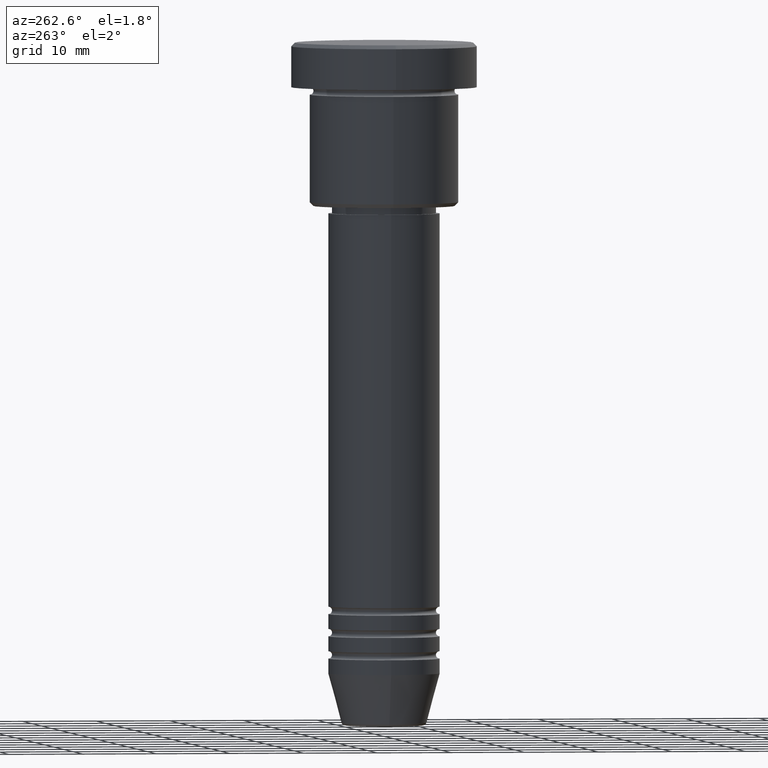
[diagram: clean part render]
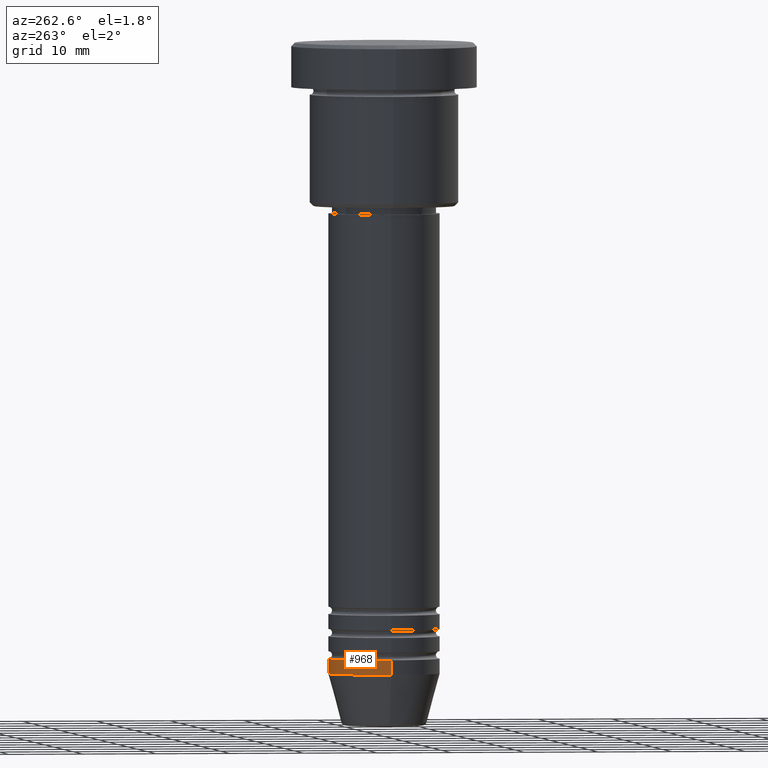
[diagram: same view with one face highlighted and labeled with its STEP entity id]
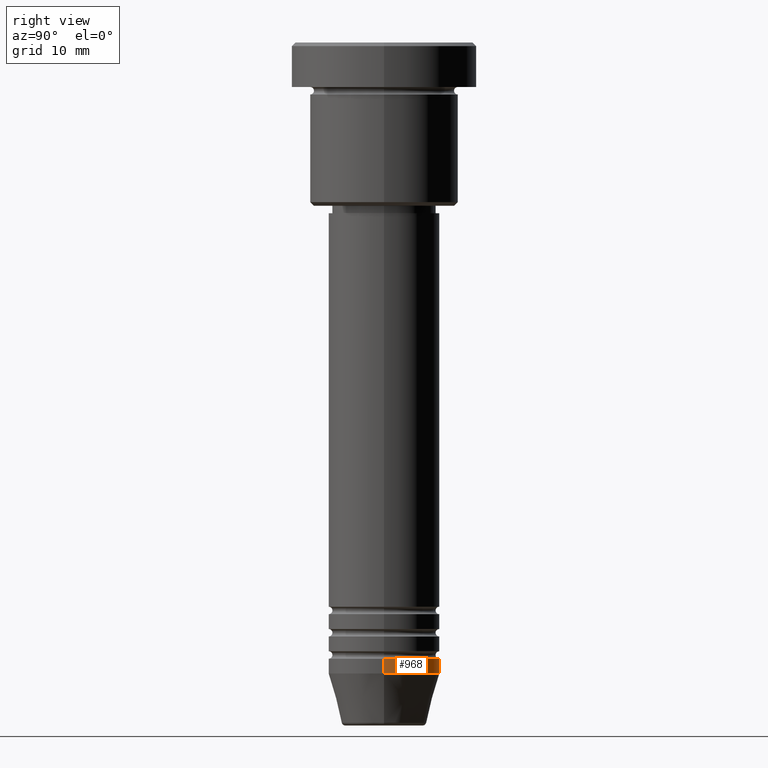
[diagram: same view with one face highlighted and labeled with its STEP entity id]
A machine part, auxiliary view. The second image highlights one B-rep face of the part: STEP entity #968.
A second angle (right view) of the same face is appended — the face is thin or edge-on in the first view.
In plain terms, the highlighted cylindrical surface (partial cylindrical patch) has radius 7.5 mm, axis along (-0, -0, 1).
Its self-contained STEP definition (entity closure, byte-faithful):
#13 = CYLINDRICAL_SURFACE ( 'NONE', #243, 7.500000000000000000 ) ;
#32 = LINE ( 'NONE', #1051, #77 ) ;
#38 = VERTEX_POINT ( 'NONE', #316 ) ;
#65 = EDGE_CURVE ( 'NONE', #380, #1043, #160, .T. ) ;
#77 = VECTOR ( 'NONE', #231, 1000.000000000000000 ) ;
#160 = CIRCLE ( 'NONE', #720, 7.500000000000000000 ) ;
#177 = ORIENTED_EDGE ( 'NONE', *, *, #892, .T. ) ;
#231 = DIRECTION ( 'NONE',  ( -0.000000000000000000, -0.000000000000000000, 1.000000000000000000 ) ) ;
#243 = AXIS2_PLACEMENT_3D ( 'NONE', #545, #1106, #1089 ) ;
#277 = CARTESIAN_POINT ( 'NONE',  ( -7.500000000000000000, 9.184850993605147944E-16, 0.000000000000000000 ) ) ;
#316 = CARTESIAN_POINT ( 'NONE',  ( -7.500000000000000000, 9.184850993605147944E-16, -84.99999999999998579 ) ) ;
#335 = VECTOR ( 'NONE', #1100, 1000.000000000000000 ) ;
#361 = EDGE_CURVE ( 'NONE', #38, #1043, #555, .T. ) ;
#380 = VERTEX_POINT ( 'NONE', #749 ) ;
#400 = CARTESIAN_POINT ( 'NONE',  ( 7.500000000000000000, 0.000000000000000000, -84.99999999999998579 ) ) ;
#448 = CARTESIAN_POINT ( 'NONE',  ( 0.000000000000000000, 0.000000000000000000, -84.99999999999998579 ) ) ;
#501 = ORIENTED_EDGE ( 'NONE', *, *, #361, .T. ) ;
#510 = EDGE_LOOP ( 'NONE', ( #177, #501, #1027, #865 ) ) ;
#516 = DIRECTION ( 'NONE',  ( 1.000000000000000000, 0.000000000000000000, 0.000000000000000000 ) ) ;
#520 = DIRECTION ( 'NONE',  ( 1.000000000000000000, 0.000000000000000000, 0.000000000000000000 ) ) ;
#526 = DIRECTION ( 'NONE',  ( -0.000000000000000000, -0.000000000000000000, 1.000000000000000000 ) ) ;
#535 = AXIS2_PLACEMENT_3D ( 'NONE', #448, #624, #520 ) ;
#545 = CARTESIAN_POINT ( 'NONE',  ( 0.000000000000000000, 0.000000000000000000, 0.000000000000000000 ) ) ;
#555 = LINE ( 'NONE', #277, #335 ) ;
#587 = CIRCLE ( 'NONE', #535, 7.500000000000000000 ) ;
#624 = DIRECTION ( 'NONE',  ( -0.000000000000000000, -0.000000000000000000, 1.000000000000000000 ) ) ;
#650 = CARTESIAN_POINT ( 'NONE',  ( -7.500000000000000000, 9.184850993605147944E-16, -82.99999999999998579 ) ) ;
#695 = CARTESIAN_POINT ( 'NONE',  ( 0.000000000000000000, 0.000000000000000000, -82.99999999999998579 ) ) ;
#720 = AXIS2_PLACEMENT_3D ( 'NONE', #695, #526, #516 ) ;
#749 = CARTESIAN_POINT ( 'NONE',  ( 7.500000000000000000, 0.000000000000000000, -82.99999999999998579 ) ) ;
#771 = VERTEX_POINT ( 'NONE', #400 ) ;
#833 = FACE_OUTER_BOUND ( 'NONE', #510, .T. ) ;
#865 = ORIENTED_EDGE ( 'NONE', *, *, #1119, .F. ) ;
#892 = EDGE_CURVE ( 'NONE', #771, #38, #587, .T. ) ;
#968 = ADVANCED_FACE ( 'NONE', ( #833 ), #13, .T. ) ;
#1027 = ORIENTED_EDGE ( 'NONE', *, *, #65, .F. ) ;
#1043 = VERTEX_POINT ( 'NONE', #650 ) ;
#1051 = CARTESIAN_POINT ( 'NONE',  ( 7.500000000000000000, 0.000000000000000000, 0.000000000000000000 ) ) ;
#1089 = DIRECTION ( 'NONE',  ( 1.000000000000000000, 0.000000000000000000, 0.000000000000000000 ) ) ;
#1100 = DIRECTION ( 'NONE',  ( -0.000000000000000000, -0.000000000000000000, 1.000000000000000000 ) ) ;
#1106 = DIRECTION ( 'NONE',  ( -0.000000000000000000, -0.000000000000000000, 1.000000000000000000 ) ) ;
#1119 = EDGE_CURVE ( 'NONE', #771, #380, #32, .T. ) ;